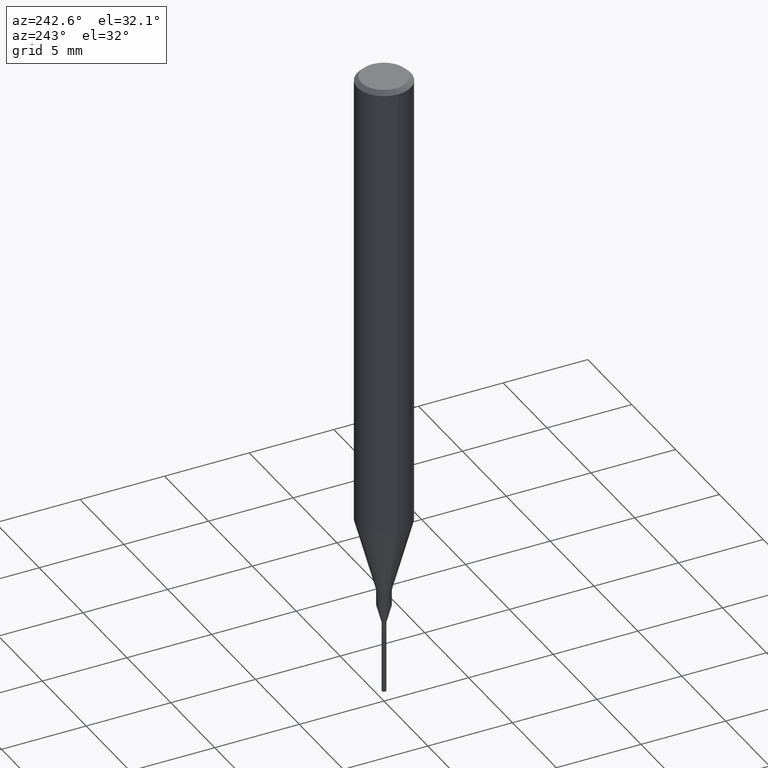
[diagram: clean part render]
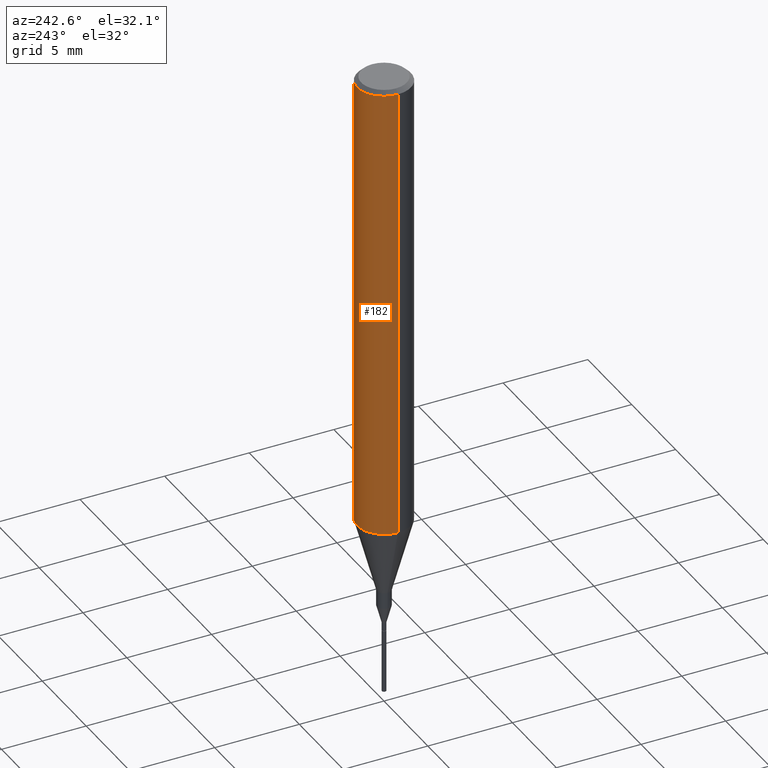
[diagram: same view with one face highlighted and labeled with its STEP entity id]
A machine part, auxiliary view. The second image highlights one B-rep face of the part: STEP entity #182.
In plain terms, the highlighted cylindrical surface (edge-blend (fillet) strip) has radius 1.5875 mm, axis along (-0, 0, 1).
Its self-contained STEP definition (entity closure, byte-faithful):
#11 = EDGE_CURVE ( 'NONE', #392, #486, #62, .T. ) ;
#21 = DIRECTION ( 'NONE',  ( -2.445468806185136877E-29, 3.491481338843145188E-15, 1.000000000000000000 ) ) ;
#57 = DIRECTION ( 'NONE',  ( -2.445468806185136877E-29, 3.491481338843145188E-15, 1.000000000000000000 ) ) ;
#58 = CARTESIAN_POINT ( 'NONE',  ( 0.06250000000000006939, -4.364351673553921624E-16, 3.047610484872463374E-30 ) ) ;
#62 = LINE ( 'NONE', #246, #104 ) ;
#78 = DIRECTION ( 'NONE',  ( 1.000000000000000000, -6.982962677686266711E-15, 4.876176775795935793E-29 ) ) ;
#104 = VECTOR ( 'NONE', #21, 39.37007874015748143 ) ;
#110 = CIRCLE ( 'NONE', #386, 0.06250000000000012490 ) ;
#128 = CARTESIAN_POINT ( 'NONE',  ( 2.634730117954813298E-29, -3.761696332605275695E-15, -1.077392650149939346 ) ) ;
#163 = CARTESIAN_POINT ( 'NONE',  ( 2.292627005798580186E-31, -3.273263755165470184E-17, -0.009375000000000060368 ) ) ;
#170 = ORIENTED_EDGE ( 'NONE', *, *, #529, .F. ) ;
#171 = DIRECTION ( 'NONE',  ( -2.445468806185136597E-29, 3.491481338843145583E-15, 1.000000000000000000 ) ) ;
#179 = CARTESIAN_POINT ( 'NONE',  ( 0.06250000000000012490, -4.198131499960668153E-15, -1.077392650149939346 ) ) ;
#182 = ADVANCED_FACE ( 'NONE', ( #261 ), #574, .T. ) ;
#208 = EDGE_CURVE ( 'NONE', #443, #486, #442, .T. ) ;
#240 = AXIS2_PLACEMENT_3D ( 'NONE', #396, #302, #78 ) ;
#246 = CARTESIAN_POINT ( 'NONE',  ( -0.06250000000000006939, 4.440892098500631092E-16, -3.074334431409319267E-30 ) ) ;
#254 = ORIENTED_EDGE ( 'NONE', *, *, #519, .T. ) ;
#259 = DIRECTION ( 'NONE',  ( 1.000000000000000000, -6.982962677686266711E-15, 0.000000000000000000 ) ) ;
#261 = FACE_OUTER_BOUND ( 'NONE', #491, .T. ) ;
#265 = CARTESIAN_POINT ( 'NONE',  ( -0.06250000000000000000, -1.453125275228401137E-15, -0.009375000000000060368 ) ) ;
#284 = VECTOR ( 'NONE', #57, 39.37007874015748143 ) ;
#302 = DIRECTION ( 'NONE',  ( -2.445468806185136597E-29, 3.491481338843145583E-15, 1.000000000000000000 ) ) ;
#308 = DIRECTION ( 'NONE',  ( 1.000000000000000000, -6.982962677686264344E-15, 0.000000000000000000 ) ) ;
#358 = ORIENTED_EDGE ( 'NONE', *, *, #208, .F. ) ;
#367 = CARTESIAN_POINT ( 'NONE',  ( 0.06250000000000000000, -4.691678049070463404E-16, -0.009375000000000060368 ) ) ;
#381 = LINE ( 'NONE', #58, #284 ) ;
#386 = AXIS2_PLACEMENT_3D ( 'NONE', #128, #171, #308 ) ;
#392 = VERTEX_POINT ( 'NONE', #546 ) ;
#396 = CARTESIAN_POINT ( 'NONE',  ( 0.000000000000000000, 0.000000000000000000, 0.000000000000000000 ) ) ;
#413 = AXIS2_PLACEMENT_3D ( 'NONE', #163, #441, #259 ) ;
#441 = DIRECTION ( 'NONE',  ( -2.445468806185136597E-29, 3.491481338843145583E-15, 1.000000000000000000 ) ) ;
#442 = CIRCLE ( 'NONE', #413, 0.06250000000000000000 ) ;
#443 = VERTEX_POINT ( 'NONE', #367 ) ;
#445 = VERTEX_POINT ( 'NONE', #179 ) ;
#486 = VERTEX_POINT ( 'NONE', #265 ) ;
#491 = EDGE_LOOP ( 'NONE', ( #254, #511, #358, #170 ) ) ;
#511 = ORIENTED_EDGE ( 'NONE', *, *, #11, .T. ) ;
#519 = EDGE_CURVE ( 'NONE', #445, #392, #110, .T. ) ;
#529 = EDGE_CURVE ( 'NONE', #445, #443, #381, .T. ) ;
#546 = CARTESIAN_POINT ( 'NONE',  ( -0.06250000000000012490, -3.317607122755211895E-15, -1.077392650149939346 ) ) ;
#574 = CYLINDRICAL_SURFACE ( 'NONE', #240, 0.06250000000000006939 ) ;